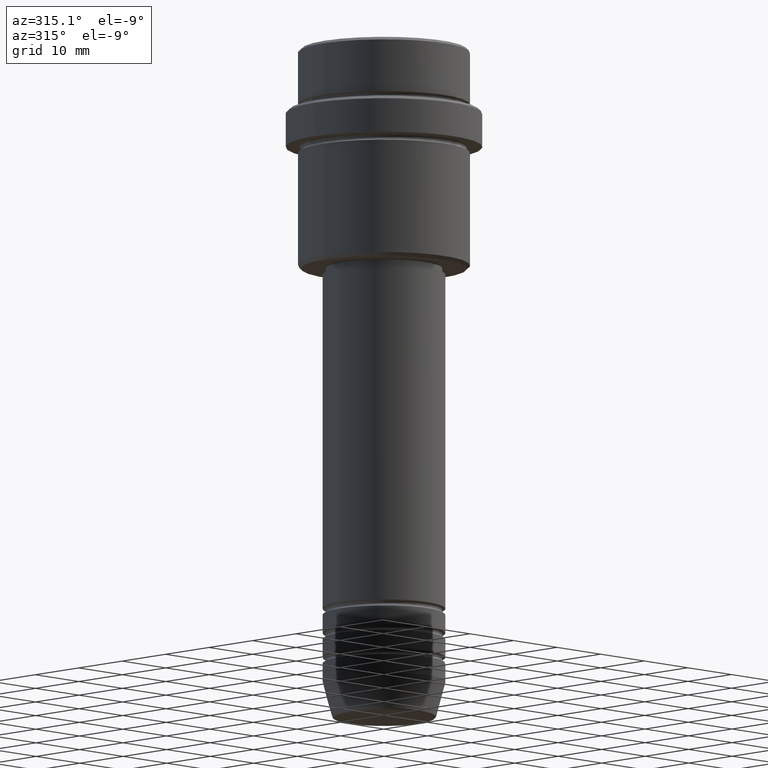
[diagram: clean part render]
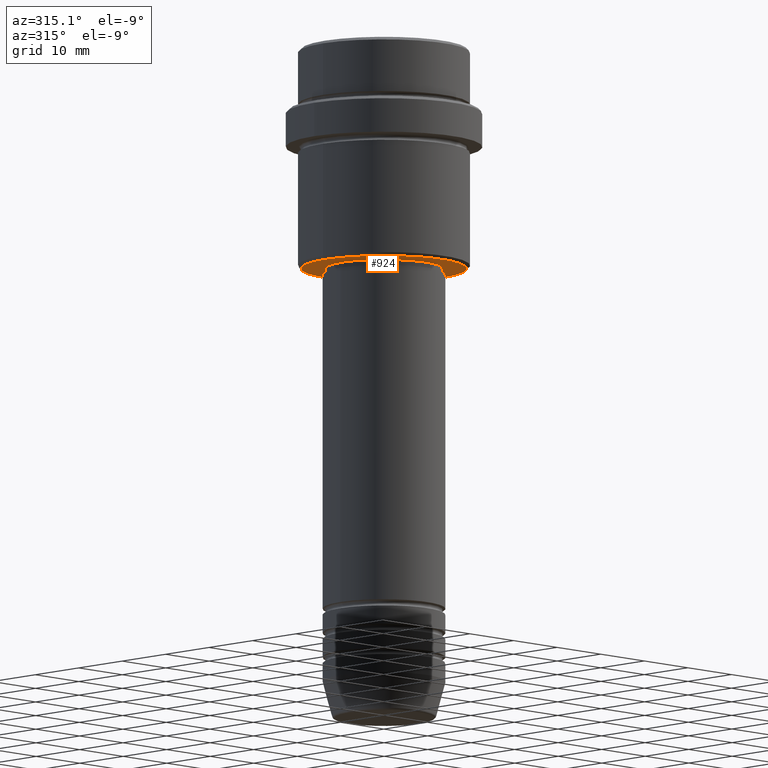
[diagram: same view with one face highlighted and labeled with its STEP entity id]
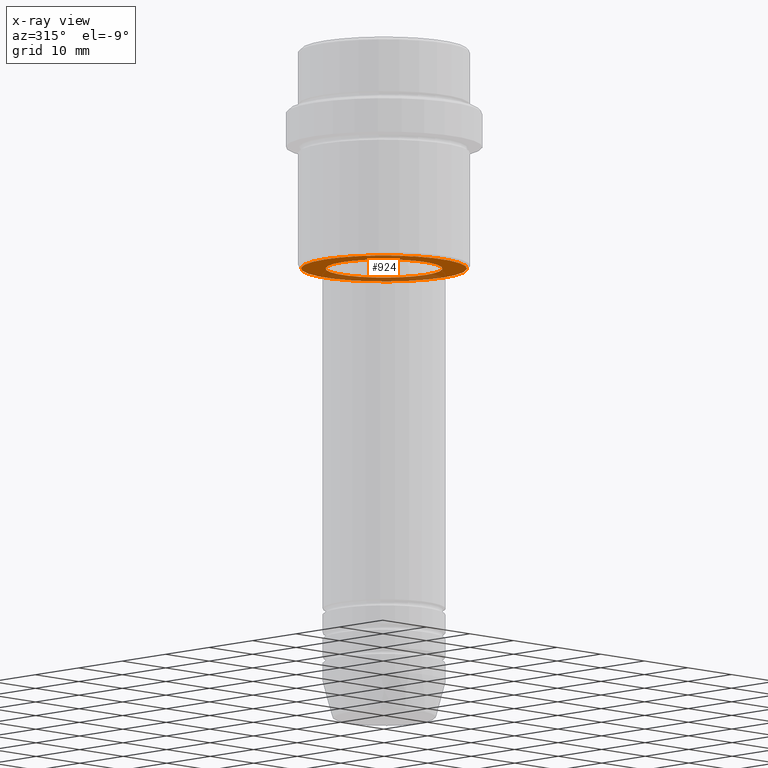
[diagram: x-ray of the same camera — body ghosted, the highlighted face saturated]
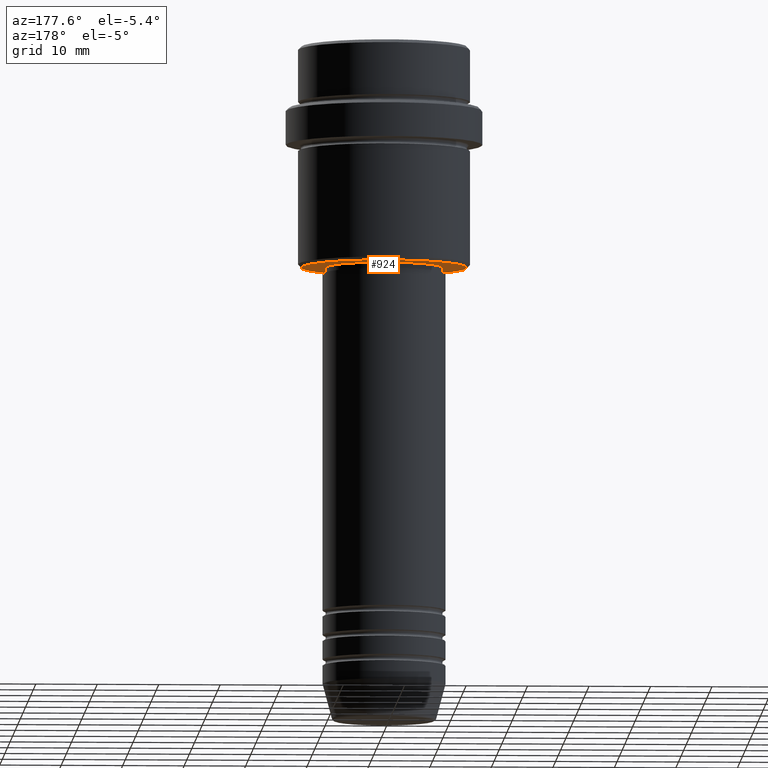
[diagram: same view with one face highlighted and labeled with its STEP entity id]
A machine part, auxiliary view. The second image highlights one B-rep face of the part: STEP entity #924.
The next image is the same camera in x-ray: the body ghosted, the highlighted face saturated — about 27% of this face is hidden behind the body in this view.
A second angle (auxiliary view) of the same face is appended — the face is thin or edge-on in the first view.
In plain terms, the highlighted planar face has unit normal (0, 0, -1).
Its self-contained STEP definition (entity closure, byte-faithful):
#43 = EDGE_CURVE ( 'NONE', #1200, #873, #812, .T. ) ;
#61 = FACE_OUTER_BOUND ( 'NONE', #161, .T. ) ;
#105 = VERTEX_POINT ( 'NONE', #685 ) ;
#124 = CIRCLE ( 'NONE', #727, 13.49999999999996980 ) ;
#161 = EDGE_LOOP ( 'NONE', ( #898, #167 ) ) ;
#167 = ORIENTED_EDGE ( 'NONE', *, *, #391, .T. ) ;
#171 = AXIS2_PLACEMENT_3D ( 'NONE', #982, #529, #1399 ) ;
#205 = CARTESIAN_POINT ( 'NONE',  ( 13.49999999999996980, 0.000000000000000000, -36.00000000000000000 ) ) ;
#273 = VERTEX_POINT ( 'NONE', #205 ) ;
#285 = PLANE ( 'NONE',  #1157 ) ;
#346 = EDGE_LOOP ( 'NONE', ( #1112, #567 ) ) ;
#391 = EDGE_CURVE ( 'NONE', #105, #273, #124, .T. ) ;
#417 = DIRECTION ( 'NONE',  ( 0.000000000000000000, 0.000000000000000000, -1.000000000000000000 ) ) ;
#440 = CARTESIAN_POINT ( 'NONE',  ( 0.000000000000000000, 0.000000000000000000, -36.00000000000000000 ) ) ;
#495 = CIRCLE ( 'NONE', #1355, 13.49999999999996980 ) ;
#514 = CARTESIAN_POINT ( 'NONE',  ( 0.000000000000000000, 14.00000000000000000, -36.00000000000000000 ) ) ;
#529 = DIRECTION ( 'NONE',  ( -0.000000000000000000, -0.000000000000000000, 1.000000000000000000 ) ) ;
#567 = ORIENTED_EDGE ( 'NONE', *, *, #642, .T. ) ;
#629 = CARTESIAN_POINT ( 'NONE',  ( -9.499999999999994671, 1.163414459189984894E-15, -36.00000000000000000 ) ) ;
#641 = DIRECTION ( 'NONE',  ( -0.000000000000000000, -0.000000000000000000, 1.000000000000000000 ) ) ;
#642 = EDGE_CURVE ( 'NONE', #873, #1200, #683, .T. ) ;
#647 = FACE_BOUND ( 'NONE', #346, .T. ) ;
#683 = CIRCLE ( 'NONE', #1227, 9.499999999999994671 ) ;
#685 = CARTESIAN_POINT ( 'NONE',  ( -13.49999999999996980, 1.683889348827608484E-15, -36.00000000000000000 ) ) ;
#727 = AXIS2_PLACEMENT_3D ( 'NONE', #1354, #823, #1342 ) ;
#733 = DIRECTION ( 'NONE',  ( -1.000000000000000000, 0.000000000000000000, -0.000000000000000000 ) ) ;
#759 = DIRECTION ( 'NONE',  ( 0.000000000000000000, 0.000000000000000000, -1.000000000000000000 ) ) ;
#763 = EDGE_CURVE ( 'NONE', #273, #105, #495, .T. ) ;
#812 = CIRCLE ( 'NONE', #171, 9.499999999999994671 ) ;
#823 = DIRECTION ( 'NONE',  ( 0.000000000000000000, 0.000000000000000000, -1.000000000000000000 ) ) ;
#854 = CARTESIAN_POINT ( 'NONE',  ( 0.000000000000000000, 0.000000000000000000, -36.00000000000000000 ) ) ;
#873 = VERTEX_POINT ( 'NONE', #629 ) ;
#898 = ORIENTED_EDGE ( 'NONE', *, *, #763, .T. ) ;
#924 = ADVANCED_FACE ( 'NONE', ( #61, #647 ), #285, .T. ) ;
#982 = CARTESIAN_POINT ( 'NONE',  ( 0.000000000000000000, 0.000000000000000000, -36.00000000000000000 ) ) ;
#1062 = DIRECTION ( 'NONE',  ( 1.000000000000000000, 0.000000000000000000, 0.000000000000000000 ) ) ;
#1112 = ORIENTED_EDGE ( 'NONE', *, *, #43, .T. ) ;
#1157 = AXIS2_PLACEMENT_3D ( 'NONE', #514, #417, #733 ) ;
#1191 = DIRECTION ( 'NONE',  ( -1.000000000000000000, 0.000000000000000000, 0.000000000000000000 ) ) ;
#1200 = VERTEX_POINT ( 'NONE', #1361 ) ;
#1227 = AXIS2_PLACEMENT_3D ( 'NONE', #854, #641, #1062 ) ;
#1342 = DIRECTION ( 'NONE',  ( -1.000000000000000000, 0.000000000000000000, 0.000000000000000000 ) ) ;
#1354 = CARTESIAN_POINT ( 'NONE',  ( 0.000000000000000000, 0.000000000000000000, -36.00000000000000000 ) ) ;
#1355 = AXIS2_PLACEMENT_3D ( 'NONE', #440, #759, #1191 ) ;
#1361 = CARTESIAN_POINT ( 'NONE',  ( 9.499999999999994671, 0.000000000000000000, -36.00000000000000000 ) ) ;
#1399 = DIRECTION ( 'NONE',  ( 1.000000000000000000, 0.000000000000000000, 0.000000000000000000 ) ) ;